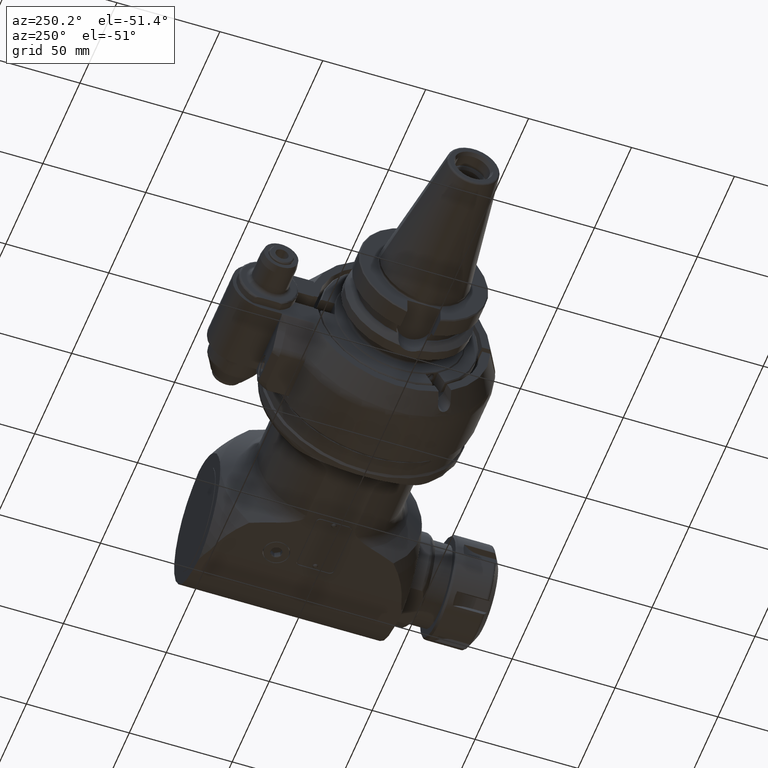
[diagram: clean part render]
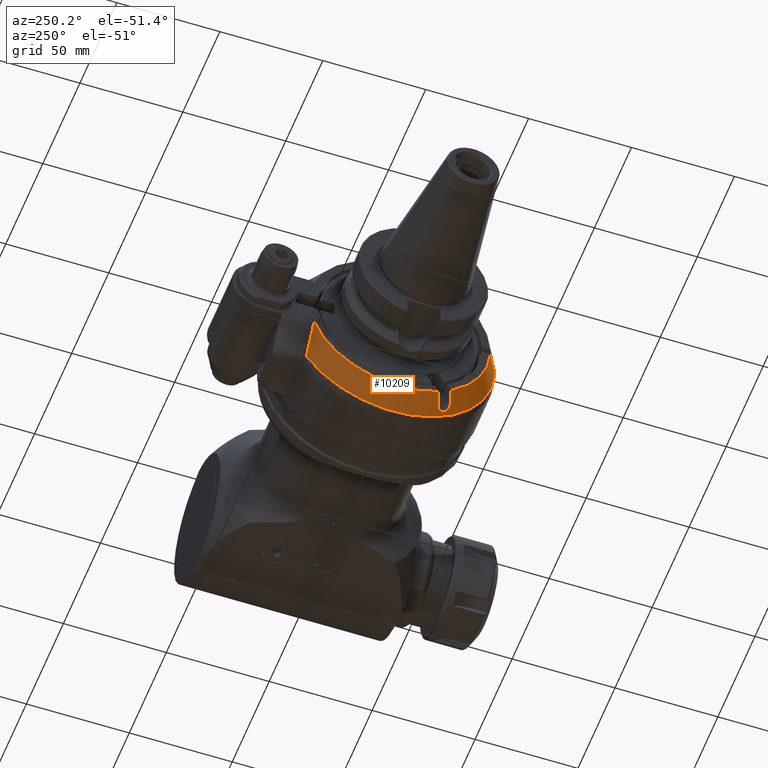
[diagram: same view with one face highlighted and labeled with its STEP entity id]
A machine part, auxiliary view. The second image highlights one B-rep face of the part: STEP entity #10209.
In plain terms, the highlighted conical surface has half-angle 30 deg.
Its self-contained STEP definition (entity closure, byte-faithful):
#104=CONICAL_SURFACE('',#10986,46.96410161514,0.523598775598299);
#256=(
BOUNDED_CURVE()
B_SPLINE_CURVE(2,(#20687,#20688,#20689),.UNSPECIFIED.,.F.,.F.)
B_SPLINE_CURVE_WITH_KNOTS((3,3),(-2.43290769105801,-0.320305328668483),
 .UNSPECIFIED.)
CURVE()
GEOMETRIC_REPRESENTATION_ITEM()
RATIONAL_B_SPLINE_CURVE((1.03252076511009,1.03062027413364,1.00749895945509))
REPRESENTATION_ITEM('')
);
#494=B_SPLINE_CURVE_WITH_KNOTS('',3,(#20808,#20809,#20810,#20811,#20812,
#20813,#20814,#20815,#20816,#20817),.UNSPECIFIED.,.F.,.F.,(4,3,3,4),(0.,
0.3333333333333,0.6666666666667,1.),.UNSPECIFIED.);
#497=B_SPLINE_CURVE_WITH_KNOTS('',3,(#20870,#20871,#20872,#20873,#20874,
#20875,#20876,#20877,#20878,#20879,#20880,#20881,#20882,#20883,#20884,#20885,
#20886,#20887),.UNSPECIFIED.,.F.,.F.,(4,2,2,2,2,2,2,2,4),(1.11206982951625,
1.24885677734264,1.4029266724495,1.5444028479349,1.68587902342029,1.82735519890569,
1.96883137439109,2.12290126949794,2.25968821732541),.UNSPECIFIED.);
#499=B_SPLINE_CURVE_WITH_KNOTS('',3,(#20909,#20910,#20911,#20912,#20913,
#20914,#20915,#20916,#20917,#20918),.UNSPECIFIED.,.F.,.F.,(4,3,3,4),(0.,
0.3333333333333,0.6666666666667,1.),.UNSPECIFIED.);
#500=B_SPLINE_CURVE_WITH_KNOTS('',3,(#20924,#20925,#20926,#20927,#20928,
#20929,#20930,#20931,#20932,#20933),.UNSPECIFIED.,.F.,.F.,(4,3,3,4),(0.,
0.3333333333333,0.6666666666667,1.),.UNSPECIFIED.);
#2577=FACE_OUTER_BOUND('',#3164,.T.);
#3164=EDGE_LOOP('',(#8166,#8167,#8168,#8169,#8170,#8171,#8172,#8173));
#3691=CIRCLE('',#10987,49.92820323028);
#3692=CIRCLE('',#10988,44.);
#3693=CIRCLE('',#10989,44.);
#4495=VERTEX_POINT('',#20675);
#4496=VERTEX_POINT('',#20686);
#4517=VERTEX_POINT('',#20805);
#4518=VERTEX_POINT('',#20807);
#4531=VERTEX_POINT('',#20868);
#4532=VERTEX_POINT('',#20869);
#4536=VERTEX_POINT('',#20908);
#4537=VERTEX_POINT('',#20922);
#5780=EDGE_CURVE('',#4495,#4496,#256,.T.);
#5807=EDGE_CURVE('',#4518,#4517,#494,.T.);
#5825=EDGE_CURVE('',#4531,#4532,#497,.F.);
#5832=EDGE_CURVE('',#4531,#4536,#499,.T.);
#5834=EDGE_CURVE('',#4518,#4495,#3691,.T.);
#5835=EDGE_CURVE('',#4537,#4517,#3692,.T.);
#5836=EDGE_CURVE('',#4537,#4532,#500,.T.);
#5837=EDGE_CURVE('',#4496,#4536,#3693,.T.);
#8166=ORIENTED_EDGE('',*,*,#5834,.F.);
#8167=ORIENTED_EDGE('',*,*,#5807,.T.);
#8168=ORIENTED_EDGE('',*,*,#5835,.F.);
#8169=ORIENTED_EDGE('',*,*,#5836,.T.);
#8170=ORIENTED_EDGE('',*,*,#5825,.F.);
#8171=ORIENTED_EDGE('',*,*,#5832,.T.);
#8172=ORIENTED_EDGE('',*,*,#5837,.F.);
#8173=ORIENTED_EDGE('',*,*,#5780,.F.);
#10209=ADVANCED_FACE('',(#2577),#104,.T.);
#10986=AXIS2_PLACEMENT_3D('',#20920,#12736,#12737);
#10987=AXIS2_PLACEMENT_3D('',#20921,#12738,#12739);
#10988=AXIS2_PLACEMENT_3D('',#20923,#12740,#12741);
#10989=AXIS2_PLACEMENT_3D('',#20934,#12742,#12743);
#12736=DIRECTION('center_axis',(1.,0.,0.));
#12737=DIRECTION('ref_axis',(0.,-1.,0.));
#12738=DIRECTION('center_axis',(1.,0.,0.));
#12739=DIRECTION('ref_axis',(0.,-0.999548602989596,-0.0300431400080999));
#12740=DIRECTION('center_axis',(-1.,0.,0.));
#12741=DIRECTION('ref_axis',(0.,-0.567304004296905,-0.823508449688707));
#12742=DIRECTION('center_axis',(-1.,0.,0.));
#12743=DIRECTION('ref_axis',(0.,0.948863636363632,-0.315686235979311));
#20675=CARTESIAN_POINT('',(-41.23205080757,41.75,-27.38180011986));
#20686=CARTESIAN_POINT('',(-51.5,41.74999999999,-13.89019438316));
#20687=CARTESIAN_POINT('Ctrl Pts',(-41.2320508075673,41.75,-27.3818001198562));
#20688=CARTESIAN_POINT('Ctrl Pts',(-48.0442956678564,41.75,-20.2102413126131));
#20689=CARTESIAN_POINT('Ctrl Pts',(-51.4999999999632,41.75,-13.8901943831554));
#20805=CARTESIAN_POINT('',(-51.5,-43.97442438509,-1.5));
#20807=CARTESIAN_POINT('',(-41.2320595617708,-49.9056607292726,-1.50000007595379));
#20808=CARTESIAN_POINT('Ctrl Pts',(-41.23206831446,-49.90565567486,-1.5));
#20809=CARTESIAN_POINT('Ctrl Pts',(-42.37293045262,-49.24668115316,-1.5));
#20810=CARTESIAN_POINT('Ctrl Pts',(-43.5138242319948,-48.5876765558151,
-1.5));
#20811=CARTESIAN_POINT('Ctrl Pts',(-44.6547122553555,-47.928662020786,-1.5));
#20812=CARTESIAN_POINT('Ctrl Pts',(-45.7956002787165,-47.2696474857567,
-1.5));
#20813=CARTESIAN_POINT('Ctrl Pts',(-46.9364825460635,-46.6106230130433,
-1.5));
#20814=CARTESIAN_POINT('Ctrl Pts',(-48.077363540237,-45.9515842405615,-1.5));
#20815=CARTESIAN_POINT('Ctrl Pts',(-49.2182445344102,-45.2925454680799,
-1.5));
#20816=CARTESIAN_POINT('Ctrl Pts',(-50.35912425541,-44.63349239583,-1.5));
#20817=CARTESIAN_POINT('Ctrl Pts',(-51.5,-43.97442438509,-1.5));
#20868=CARTESIAN_POINT('',(-46.5,-20.34687855495,-42.24182743261));
#20869=CARTESIAN_POINT('',(-46.5,-26.40905638145,-38.74182743261));
#20870=CARTESIAN_POINT('Ctrl Pts',(-46.5000000000002,-26.4090563814455,
-38.7418274326129));
#20871=CARTESIAN_POINT('Ctrl Pts',(-46.0992085079157,-26.5250786273062,
-38.9427838572518));
#20872=CARTESIAN_POINT('Ctrl Pts',(-45.6780271021362,-26.5877455833705,
-39.1945532832522));
#20873=CARTESIAN_POINT('Ctrl Pts',(-44.8336229766582,-26.5711996809164,
-39.7934207779667));
#20874=CARTESIAN_POINT('Ctrl Pts',(-44.416786404141,-26.4721822625297,-40.1489075806805));
#20875=CARTESIAN_POINT('Ctrl Pts',(-43.7689100689263,-26.1383338430384,
-40.8117265913294));
#20876=CARTESIAN_POINT('Ctrl Pts',(-43.4858969585476,-25.8928265156274,
-41.1623315039927));
#20877=CARTESIAN_POINT('Ctrl Pts',(-43.1011571537054,-25.2551263794943,
-41.8163473322267));
#20878=CARTESIAN_POINT('Ctrl Pts',(-43.,-24.8621451840586,-42.1193241407055));
#20879=CARTESIAN_POINT('Ctrl Pts',(-43.,-24.0453321040545,-42.5909113923235));
#20880=CARTESIAN_POINT('Ctrl Pts',(-43.1011571537054,-23.5864558934365,
-42.779754686541));
#20881=CARTESIAN_POINT('Ctrl Pts',(-43.4858969585476,-22.7012115036422,
-43.0050112903121));
#20882=CARTESIAN_POINT('Ctrl Pts',(-43.7689100689263,-22.2748250788787,
-43.0423244163336));
#20883=CARTESIAN_POINT('Ctrl Pts',(-44.416786404141,-21.5338827677997,-43.000036123302));
#20884=CARTESIAN_POINT('Ctrl Pts',(-44.8336229766582,-21.1765134567462,
-42.908044321685));
#20885=CARTESIAN_POINT('Ctrl Pts',(-45.6780271021394,-20.6496060415937,
-42.6229397461805));
#20886=CARTESIAN_POINT('Ctrl Pts',(-46.0992085079223,-20.4629008008123,
-42.4427838572491));
#20887=CARTESIAN_POINT('Ctrl Pts',(-46.5000000000096,-20.3468785549518,
-42.2418274326083));
#20908=CARTESIAN_POINT('',(-51.5,-18.89919836257,-39.7343717863));
#20909=CARTESIAN_POINT('Ctrl Pts',(-46.5000000000021,-20.3468785549516,
-42.2418274326133));
#20910=CARTESIAN_POINT('Ctrl Pts',(-47.0555636796788,-20.1860524218991,
-41.9632683989681));
#20911=CARTESIAN_POINT('Ctrl Pts',(-47.6111251834313,-20.0252176577258,
-41.6846944543344));
#20912=CARTESIAN_POINT('Ctrl Pts',(-48.1666839961781,-19.864373839952,-41.4061048113106));
#20913=CARTESIAN_POINT('Ctrl Pts',(-48.7222428089251,-19.7035300221781,
-41.1275151682867));
#20914=CARTESIAN_POINT('Ctrl Pts',(-49.2777989309903,-19.5426771511998,
-40.8489098273047));
#20915=CARTESIAN_POINT('Ctrl Pts',(-49.8333517949414,-19.381814745264,-40.5702879469552));
#20916=CARTESIAN_POINT('Ctrl Pts',(-50.3889046588924,-19.2209523393283,
-40.2916660666057));
#20917=CARTESIAN_POINT('Ctrl Pts',(-50.9444542651007,-19.0600803989606,
-40.0130276473512));
#20918=CARTESIAN_POINT('Ctrl Pts',(-51.5000000000014,-18.8991983625711,
-39.7343717863022));
#20920=CARTESIAN_POINT('Origin',(-46.36602540378,0.,0.));
#20921=CARTESIAN_POINT('Origin',(-41.23205080757,0.,0.));
#20922=CARTESIAN_POINT('',(-51.5,-24.96137618907,-36.2343717863));
#20923=CARTESIAN_POINT('Origin',(-51.5,0.,0.));
#20924=CARTESIAN_POINT('Ctrl Pts',(-51.4999999999995,-24.9613761890695,
-36.2343717862992));
#20925=CARTESIAN_POINT('Ctrl Pts',(-50.9444542651011,-25.1222582254511,
-36.5130276473516));
#20926=CARTESIAN_POINT('Ctrl Pts',(-50.3889046588926,-25.2831302048165,
-36.7916660440905));
#20927=CARTESIAN_POINT('Ctrl Pts',(-49.8333517949413,-25.4439926282826,
-37.070287914319));
#20928=CARTESIAN_POINT('Ctrl Pts',(-49.2777989309897,-25.6048550517487,
-37.3489097845476));
#20929=CARTESIAN_POINT('Ctrl Pts',(-48.7222428089239,-25.7657079191777,
-37.6275151275794));
#20930=CARTESIAN_POINT('Ctrl Pts',(-48.166683996177,-25.9265517183818,-37.9061047813243));
#20931=CARTESIAN_POINT('Ctrl Pts',(-47.6111251834304,-26.0873955175858,
-38.1846944350692));
#20932=CARTESIAN_POINT('Ctrl Pts',(-47.0555636796788,-26.2482302483888,
-38.4632683989682));
#20933=CARTESIAN_POINT('Ctrl Pts',(-46.5,-26.40905638145,-38.74182743261));
#20934=CARTESIAN_POINT('Origin',(-51.5,0.,0.));